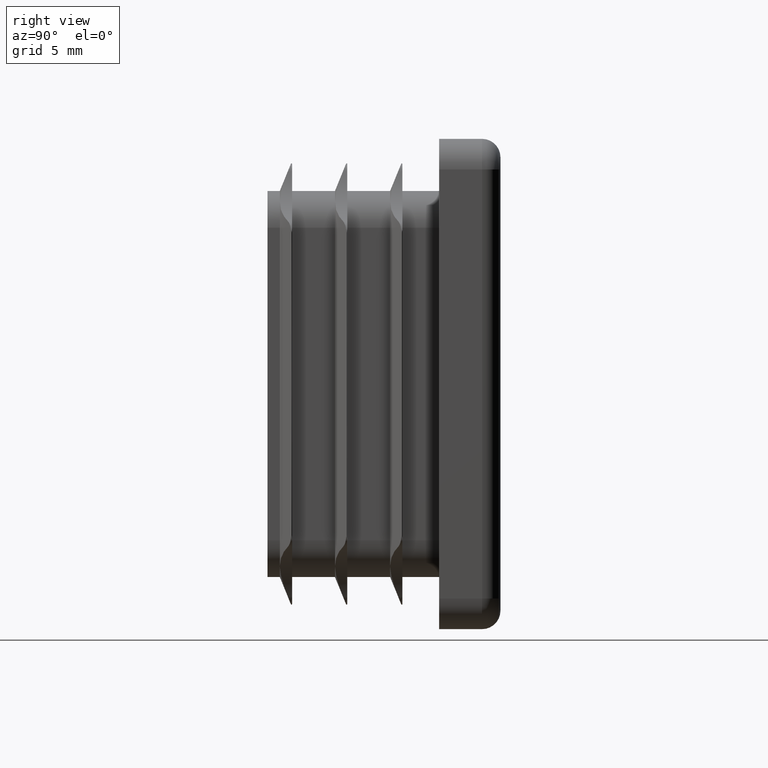
[diagram: clean part render]
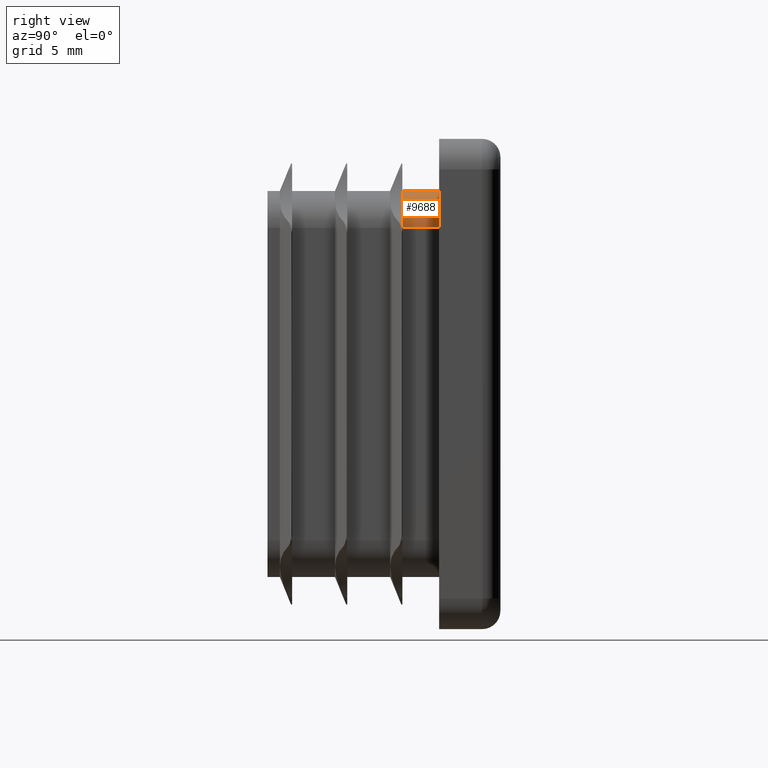
[diagram: same view with one face highlighted and labeled with its STEP entity id]
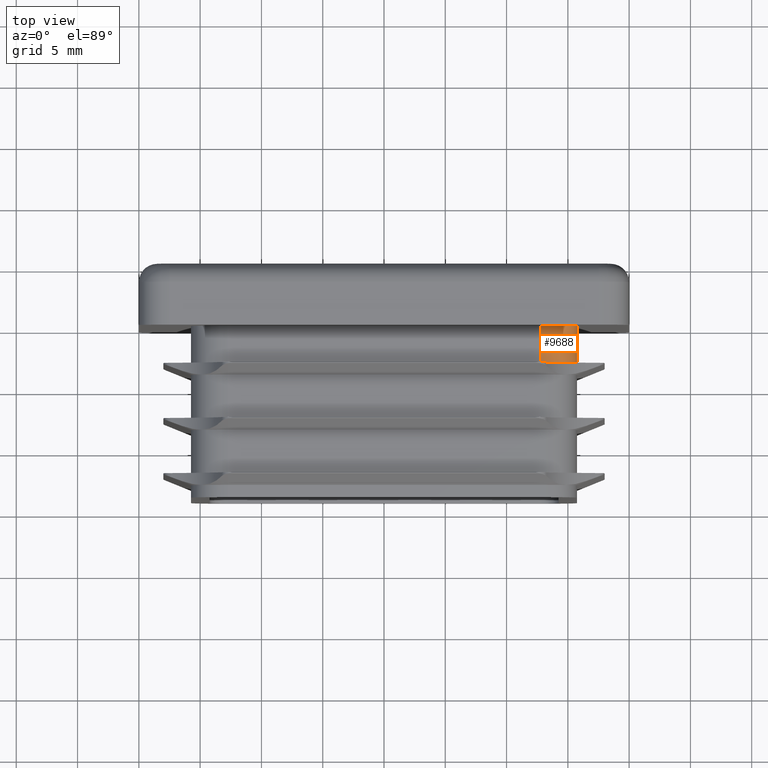
[diagram: same view with one face highlighted and labeled with its STEP entity id]
A machine part, right view. The second image highlights one B-rep face of the part: STEP entity #9688.
A second angle (top view) of the same face is appended — the face is thin or edge-on in the first view.
In plain terms, the highlighted cylindrical surface (partial cylindrical patch) has radius 3 mm, axis along (-0, 1, -0).
Its self-contained STEP definition (entity closure, byte-faithful):
#304 = DIRECTION ( 'NONE',  ( 0.000000000000000000, 0.000000000000000000, 1.000000000000000000 ) ) ;
#381 = DIRECTION ( 'NONE',  ( 0.000000000000000000, -1.000000000000000000, 0.000000000000000000 ) ) ;
#662 = DIRECTION ( 'NONE',  ( 0.000000000000000000, 1.000000000000000000, 0.000000000000000000 ) ) ;
#1127 = LINE ( 'NONE', #1885, #12265 ) ;
#1246 = DIRECTION ( 'NONE',  ( 0.000000000000000000, 1.000000000000000000, 0.000000000000000000 ) ) ;
#1885 = CARTESIAN_POINT ( 'NONE',  ( 15.75000000000000000, -14.00000000000000000, 12.75000000000000178 ) ) ;
#1990 = EDGE_LOOP ( 'NONE', ( #15156, #15438, #6575, #14072, #18566 ) ) ;
#2008 = VERTEX_POINT ( 'NONE', #9456 ) ;
#2768 = VERTEX_POINT ( 'NONE', #12804 ) ;
#3008 = EDGE_CURVE ( 'NONE', #12862, #2008, #1127, .T. ) ;
#3310 = AXIS2_PLACEMENT_3D ( 'NONE', #17457, #381, #304 ) ;
#3677 = AXIS2_PLACEMENT_3D ( 'NONE', #20656, #662, #12674 ) ;
#4706 = DIRECTION ( 'NONE',  ( 0.000000000000000000, 0.000000000000000000, 1.000000000000000000 ) ) ;
#5737 = VECTOR ( 'NONE', #5817, 1000.000000000000000 ) ;
#5817 = DIRECTION ( 'NONE',  ( -0.000000000000000000, 1.000000000000000000, -0.000000000000000000 ) ) ;
#5962 = VERTEX_POINT ( 'NONE', #13808 ) ;
#6448 = AXIS2_PLACEMENT_3D ( 'NONE', #12625, #12848, #4706 ) ;
#6473 = EDGE_CURVE ( 'NONE', #5962, #12862, #9237, .T. ) ;
#6575 = ORIENTED_EDGE ( 'NONE', *, *, #15653, .T. ) ;
#9237 = CIRCLE ( 'NONE', #3677, 2.999999999999999112 ) ;
#9456 = CARTESIAN_POINT ( 'NONE',  ( 15.75000000000000000, 0.000000000000000000, 12.75000000000000178 ) ) ;
#9688 = ADVANCED_FACE ( 'NONE', ( #16070 ), #18167, .T. ) ;
#10571 = DIRECTION ( 'NONE',  ( -0.000000000000000000, 1.000000000000000000, -0.000000000000000000 ) ) ;
#11405 = CARTESIAN_POINT ( 'NONE',  ( 12.74999999999999822, -3.000000000000000888, 12.75000000000000178 ) ) ;
#12265 = VECTOR ( 'NONE', #10571, 1000.000000000000000 ) ;
#12625 = CARTESIAN_POINT ( 'NONE',  ( 12.74999999999999822, -14.00000000000000000, 12.75000000000000178 ) ) ;
#12674 = DIRECTION ( 'NONE',  ( 0.000000000000000000, 0.000000000000000000, 1.000000000000000000 ) ) ;
#12804 = CARTESIAN_POINT ( 'NONE',  ( 12.74999999999999822, -3.000000000000000888, 15.75000000000000000 ) ) ;
#12848 = DIRECTION ( 'NONE',  ( -0.000000000000000000, 1.000000000000000000, -0.000000000000000000 ) ) ;
#12862 = VERTEX_POINT ( 'NONE', #14721 ) ;
#13003 = AXIS2_PLACEMENT_3D ( 'NONE', #11405, #1246, #16363 ) ;
#13287 = VERTEX_POINT ( 'NONE', #13909 ) ;
#13808 = CARTESIAN_POINT ( 'NONE',  ( 14.87132034355960819, -3.000000000000000888, 14.87132034355967214 ) ) ;
#13909 = CARTESIAN_POINT ( 'NONE',  ( 12.74999999999999822, 0.000000000000000000, 15.75000000000000000 ) ) ;
#14072 = ORIENTED_EDGE ( 'NONE', *, *, #6473, .T. ) ;
#14122 = EDGE_CURVE ( 'NONE', #2008, #13287, #14367, .T. ) ;
#14367 = CIRCLE ( 'NONE', #3310, 2.999999999999999112 ) ;
#14721 = CARTESIAN_POINT ( 'NONE',  ( 15.75000000000000000, -3.000000000000000888, 12.75000000000000178 ) ) ;
#15156 = ORIENTED_EDGE ( 'NONE', *, *, #14122, .T. ) ;
#15438 = ORIENTED_EDGE ( 'NONE', *, *, #20029, .F. ) ;
#15640 = CIRCLE ( 'NONE', #13003, 2.999999999999999112 ) ;
#15653 = EDGE_CURVE ( 'NONE', #2768, #5962, #15640, .T. ) ;
#16070 = FACE_OUTER_BOUND ( 'NONE', #1990, .T. ) ;
#16363 = DIRECTION ( 'NONE',  ( 0.000000000000000000, 0.000000000000000000, 1.000000000000000000 ) ) ;
#17457 = CARTESIAN_POINT ( 'NONE',  ( 12.74999999999999822, 0.000000000000000000, 12.75000000000000178 ) ) ;
#18167 = CYLINDRICAL_SURFACE ( 'NONE', #6448, 2.999999999999999112 ) ;
#18566 = ORIENTED_EDGE ( 'NONE', *, *, #3008, .T. ) ;
#20029 = EDGE_CURVE ( 'NONE', #2768, #13287, #20288, .T. ) ;
#20288 = LINE ( 'NONE', #20528, #5737 ) ;
#20528 = CARTESIAN_POINT ( 'NONE',  ( 12.74999999999999822, -14.00000000000000000, 15.75000000000000000 ) ) ;
#20656 = CARTESIAN_POINT ( 'NONE',  ( 12.74999999999999822, -3.000000000000000888, 12.75000000000000178 ) ) ;